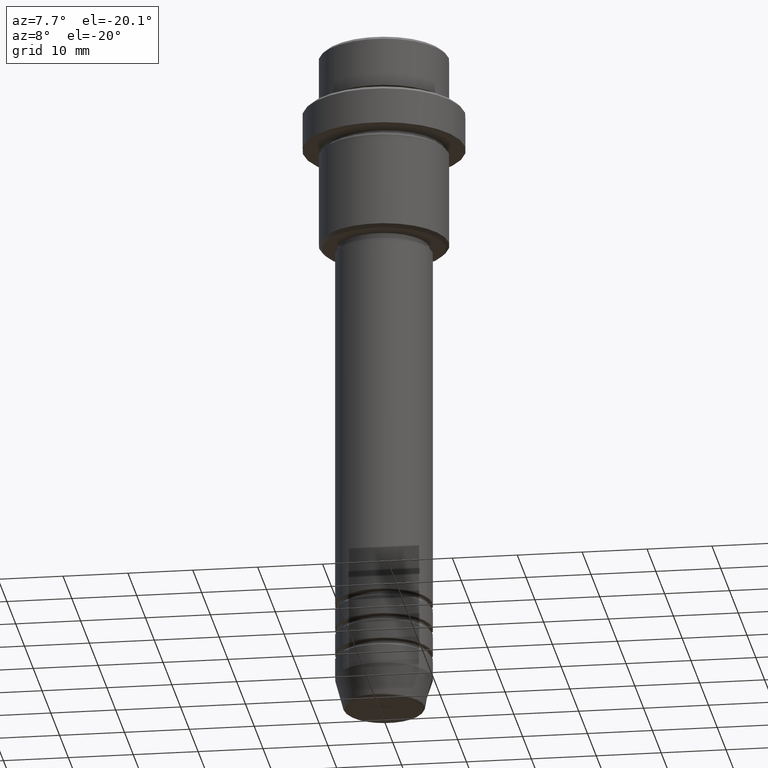
[diagram: clean part render]
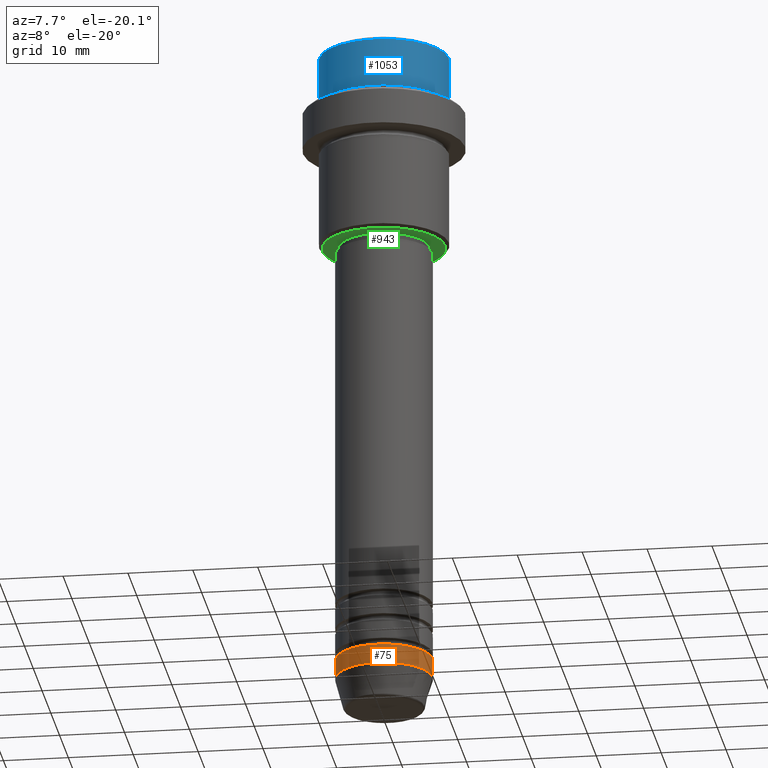
[diagram: same view with three faces highlighted in distinct colors, each labeled with its STEP entity id]
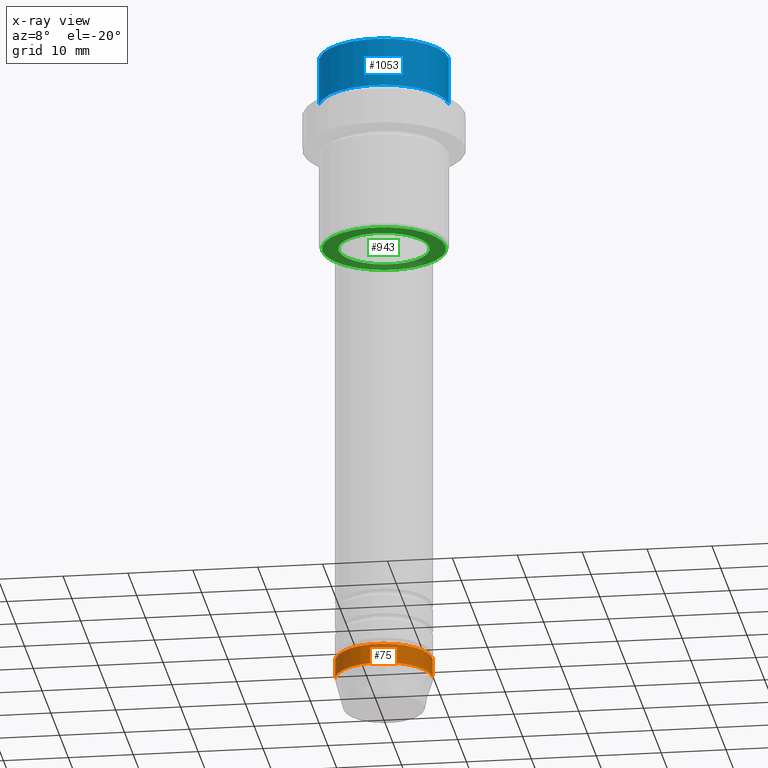
[diagram: x-ray of the same camera — body ghosted, the three highlighted faces saturated]
A machine part, auxiliary view with three faces highlighted in distinct colors.
The next image is the same camera in x-ray (body ghosted, the three faces saturated) — at least one of them is partly hidden behind the body in this view.
Their STEP definitions:

[orange] entity #75 — the highlighted cylindrical surface (partial cylindrical patch) has radius 7.5 mm, axis along (-0, -0, 1).
#30 = DIRECTION ( 'NONE',  ( -0.000000000000000000, -0.000000000000000000, 1.000000000000000000 ) ) ;
#75 = ADVANCED_FACE ( 'NONE', ( #702 ), #257, .T. ) ;
#110 = EDGE_CURVE ( 'NONE', #1167, #908, #695, .T. ) ;
#132 = CARTESIAN_POINT ( 'NONE',  ( 0.000000000000000000, 0.000000000000000000, -98.00000000000000000 ) ) ;
#204 = DIRECTION ( 'NONE',  ( -0.000000000000000000, -0.000000000000000000, 1.000000000000000000 ) ) ;
#225 = EDGE_CURVE ( 'NONE', #708, #908, #1089, .T. ) ;
#230 = DIRECTION ( 'NONE',  ( -0.000000000000000000, -0.000000000000000000, 1.000000000000000000 ) ) ;
#250 = CARTESIAN_POINT ( 'NONE',  ( 0.000000000000000000, 0.000000000000000000, 0.000000000000000000 ) ) ;
#257 = CYLINDRICAL_SURFACE ( 'NONE', #273, 7.500000000000000000 ) ;
#273 = AXIS2_PLACEMENT_3D ( 'NONE', #250, #1145, #1250 ) ;
#289 = ORIENTED_EDGE ( 'NONE', *, *, #472, .F. ) ;
#322 = VERTEX_POINT ( 'NONE', #648 ) ;
#330 = CIRCLE ( 'NONE', #500, 7.500000000000000000 ) ;
#399 = ORIENTED_EDGE ( 'NONE', *, *, #110, .T. ) ;
#428 = CARTESIAN_POINT ( 'NONE',  ( -7.500000000000000000, 9.184850993605147944E-16, 0.000000000000000000 ) ) ;
#472 = EDGE_CURVE ( 'NONE', #322, #708, #784, .T. ) ;
#500 = AXIS2_PLACEMENT_3D ( 'NONE', #1208, #230, #672 ) ;
#648 = CARTESIAN_POINT ( 'NONE',  ( -7.500000000000000000, 9.184850993605147944E-16, -101.0000000000000000 ) ) ;
#672 = DIRECTION ( 'NONE',  ( 1.000000000000000000, 0.000000000000000000, 0.000000000000000000 ) ) ;
#690 = VECTOR ( 'NONE', #947, 1000.000000000000000 ) ;
#695 = LINE ( 'NONE', #729, #690 ) ;
#702 = FACE_OUTER_BOUND ( 'NONE', #1214, .T. ) ;
#708 = VERTEX_POINT ( 'NONE', #1359 ) ;
#729 = CARTESIAN_POINT ( 'NONE',  ( 7.500000000000000000, 0.000000000000000000, 0.000000000000000000 ) ) ;
#784 = LINE ( 'NONE', #428, #951 ) ;
#908 = VERTEX_POINT ( 'NONE', #990 ) ;
#947 = DIRECTION ( 'NONE',  ( -0.000000000000000000, -0.000000000000000000, 1.000000000000000000 ) ) ;
#948 = ORIENTED_EDGE ( 'NONE', *, *, #1101, .T. ) ;
#951 = VECTOR ( 'NONE', #204, 1000.000000000000000 ) ;
#990 = CARTESIAN_POINT ( 'NONE',  ( 7.500000000000000000, 0.000000000000000000, -98.00000000000000000 ) ) ;
#1030 = CARTESIAN_POINT ( 'NONE',  ( 7.500000000000000000, 0.000000000000000000, -101.0000000000000000 ) ) ;
#1051 = ORIENTED_EDGE ( 'NONE', *, *, #225, .F. ) ;
#1089 = CIRCLE ( 'NONE', #1299, 7.500000000000000000 ) ;
#1101 = EDGE_CURVE ( 'NONE', #322, #1167, #330, .T. ) ;
#1145 = DIRECTION ( 'NONE',  ( -0.000000000000000000, -0.000000000000000000, 1.000000000000000000 ) ) ;
#1167 = VERTEX_POINT ( 'NONE', #1030 ) ;
#1208 = CARTESIAN_POINT ( 'NONE',  ( 0.000000000000000000, 0.000000000000000000, -101.0000000000000000 ) ) ;
#1214 = EDGE_LOOP ( 'NONE', ( #289, #948, #399, #1051 ) ) ;
#1250 = DIRECTION ( 'NONE',  ( 1.000000000000000000, 0.000000000000000000, 0.000000000000000000 ) ) ;
#1299 = AXIS2_PLACEMENT_3D ( 'NONE', #132, #30, #1333 ) ;
#1333 = DIRECTION ( 'NONE',  ( 1.000000000000000000, 0.000000000000000000, 0.000000000000000000 ) ) ;
#1359 = CARTESIAN_POINT ( 'NONE',  ( -7.500000000000000000, 9.184850993605147944E-16, -98.00000000000000000 ) ) ;

[blue] entity #1053 — the highlighted cylindrical surface (partial cylindrical patch) has radius 10 mm, axis along (-0, -0, 1).
#7 = CARTESIAN_POINT ( 'NONE',  ( -9.999999999999998224, 1.224646799147353059E-15, -7.999999999999998224 ) ) ;
#15 = ORIENTED_EDGE ( 'NONE', *, *, #829, .F. ) ;
#38 = DIRECTION ( 'NONE',  ( -0.000000000000000000, -0.000000000000000000, 1.000000000000000000 ) ) ;
#87 = DIRECTION ( 'NONE',  ( 1.000000000000000000, 0.000000000000000000, 0.000000000000000000 ) ) ;
#95 = DIRECTION ( 'NONE',  ( -0.000000000000000000, -0.000000000000000000, 1.000000000000000000 ) ) ;
#100 = DIRECTION ( 'NONE',  ( -0.000000000000000000, -0.000000000000000000, 1.000000000000000000 ) ) ;
#114 = CARTESIAN_POINT ( 'NONE',  ( 9.999999999999998224, 0.000000000000000000, 0.000000000000000000 ) ) ;
#116 = CARTESIAN_POINT ( 'NONE',  ( 0.000000000000000000, 0.000000000000000000, -0.5000000000000247580 ) ) ;
#134 = AXIS2_PLACEMENT_3D ( 'NONE', #116, #563, #1009 ) ;
#144 = EDGE_CURVE ( 'NONE', #1103, #1229, #1218, .T. ) ;
#223 = LINE ( 'NONE', #114, #741 ) ;
#332 = EDGE_LOOP ( 'NONE', ( #15, #1349, #1338, #508 ) ) ;
#366 = EDGE_CURVE ( 'NONE', #468, #510, #395, .T. ) ;
#395 = CIRCLE ( 'NONE', #134, 9.999999999999998224 ) ;
#461 = EDGE_CURVE ( 'NONE', #1229, #468, #223, .T. ) ;
#468 = VERTEX_POINT ( 'NONE', #1098 ) ;
#487 = CARTESIAN_POINT ( 'NONE',  ( -9.999999999999998224, 1.224646799147353059E-15, 0.000000000000000000 ) ) ;
#508 = ORIENTED_EDGE ( 'NONE', *, *, #366, .T. ) ;
#510 = VERTEX_POINT ( 'NONE', #1077 ) ;
#522 = AXIS2_PLACEMENT_3D ( 'NONE', #1070, #95, #87 ) ;
#554 = DIRECTION ( 'NONE',  ( -0.000000000000000000, -0.000000000000000000, 1.000000000000000000 ) ) ;
#563 = DIRECTION ( 'NONE',  ( 0.000000000000000000, 0.000000000000000000, -1.000000000000000000 ) ) ;
#712 = CARTESIAN_POINT ( 'NONE',  ( 9.999999999999998224, 0.000000000000000000, -7.999999999999998224 ) ) ;
#741 = VECTOR ( 'NONE', #554, 1000.000000000000000 ) ;
#829 = EDGE_CURVE ( 'NONE', #1103, #510, #1031, .T. ) ;
#928 = CYLINDRICAL_SURFACE ( 'NONE', #1021, 9.999999999999998224 ) ;
#1009 = DIRECTION ( 'NONE',  ( 1.000000000000000000, 0.000000000000000000, 0.000000000000000000 ) ) ;
#1021 = AXIS2_PLACEMENT_3D ( 'NONE', #1107, #100, #1314 ) ;
#1031 = LINE ( 'NONE', #487, #1037 ) ;
#1037 = VECTOR ( 'NONE', #38, 1000.000000000000000 ) ;
#1053 = ADVANCED_FACE ( 'NONE', ( #1203 ), #928, .T. ) ;
#1070 = CARTESIAN_POINT ( 'NONE',  ( 0.000000000000000000, 0.000000000000000000, -7.999999999999998224 ) ) ;
#1077 = CARTESIAN_POINT ( 'NONE',  ( -9.999999999999998224, 1.224646799147353059E-15, -0.5000000000000247580 ) ) ;
#1098 = CARTESIAN_POINT ( 'NONE',  ( 9.999999999999998224, 0.000000000000000000, -0.5000000000000247580 ) ) ;
#1103 = VERTEX_POINT ( 'NONE', #7 ) ;
#1107 = CARTESIAN_POINT ( 'NONE',  ( 0.000000000000000000, 0.000000000000000000, 0.000000000000000000 ) ) ;
#1203 = FACE_OUTER_BOUND ( 'NONE', #332, .T. ) ;
#1218 = CIRCLE ( 'NONE', #522, 9.999999999999998224 ) ;
#1229 = VERTEX_POINT ( 'NONE', #712 ) ;
#1314 = DIRECTION ( 'NONE',  ( 1.000000000000000000, 0.000000000000000000, 0.000000000000000000 ) ) ;
#1338 = ORIENTED_EDGE ( 'NONE', *, *, #461, .T. ) ;
#1349 = ORIENTED_EDGE ( 'NONE', *, *, #144, .T. ) ;

[green] entity #943 — the highlighted planar face has unit normal (0, 0, -1).
#76 = CARTESIAN_POINT ( 'NONE',  ( 0.000000000000000000, 0.000000000000000000, -30.99999999999999645 ) ) ;
#77 = DIRECTION ( 'NONE',  ( 1.000000000000000000, 0.000000000000000000, 0.000000000000000000 ) ) ;
#78 = VERTEX_POINT ( 'NONE', #716 ) ;
#133 = AXIS2_PLACEMENT_3D ( 'NONE', #76, #420, #657 ) ;
#173 = ORIENTED_EDGE ( 'NONE', *, *, #1385, .T. ) ;
#214 = DIRECTION ( 'NONE',  ( -1.000000000000000000, 0.000000000000000000, -0.000000000000000000 ) ) ;
#274 = AXIS2_PLACEMENT_3D ( 'NONE', #310, #770, #1191 ) ;
#275 = CIRCLE ( 'NONE', #459, 9.500000000000008882 ) ;
#310 = CARTESIAN_POINT ( 'NONE',  ( 0.000000000000000000, 0.000000000000000000, -30.99999999999999289 ) ) ;
#336 = DIRECTION ( 'NONE',  ( 0.000000000000000000, 0.000000000000000000, -1.000000000000000000 ) ) ;
#338 = EDGE_LOOP ( 'NONE', ( #173, #1217 ) ) ;
#339 = EDGE_CURVE ( 'NONE', #78, #485, #275, .T. ) ;
#420 = DIRECTION ( 'NONE',  ( 0.000000000000000000, 0.000000000000000000, -1.000000000000000000 ) ) ;
#424 = DIRECTION ( 'NONE',  ( 0.000000000000000000, 0.000000000000000000, -1.000000000000000000 ) ) ;
#429 = DIRECTION ( 'NONE',  ( -0.000000000000000000, -0.000000000000000000, 1.000000000000000000 ) ) ;
#459 = AXIS2_PLACEMENT_3D ( 'NONE', #988, #424, #766 ) ;
#485 = VERTEX_POINT ( 'NONE', #573 ) ;
#538 = ORIENTED_EDGE ( 'NONE', *, *, #1303, .T. ) ;
#573 = CARTESIAN_POINT ( 'NONE',  ( 9.500000000000008882, 0.000000000000000000, -30.99999999999999645 ) ) ;
#619 = CIRCLE ( 'NONE', #274, 6.999999999999993783 ) ;
#657 = DIRECTION ( 'NONE',  ( -1.000000000000000000, 0.000000000000000000, 0.000000000000000000 ) ) ;
#716 = CARTESIAN_POINT ( 'NONE',  ( -9.500000000000008882, 1.194030629168669864E-15, -30.99999999999999645 ) ) ;
#766 = DIRECTION ( 'NONE',  ( -1.000000000000000000, 0.000000000000000000, 0.000000000000000000 ) ) ;
#768 = CIRCLE ( 'NONE', #133, 9.500000000000008882 ) ;
#770 = DIRECTION ( 'NONE',  ( -0.000000000000000000, -0.000000000000000000, 1.000000000000000000 ) ) ;
#852 = ORIENTED_EDGE ( 'NONE', *, *, #920, .T. ) ;
#859 = CARTESIAN_POINT ( 'NONE',  ( 0.000000000000000000, 0.000000000000000000, -30.99999999999999289 ) ) ;
#866 = VERTEX_POINT ( 'NONE', #1407 ) ;
#920 = EDGE_CURVE ( 'NONE', #866, #1220, #1237, .T. ) ;
#943 = ADVANCED_FACE ( 'NONE', ( #1302, #1395 ), #1283, .T. ) ;
#958 = EDGE_LOOP ( 'NONE', ( #538, #852 ) ) ;
#988 = CARTESIAN_POINT ( 'NONE',  ( 0.000000000000000000, 0.000000000000000000, -30.99999999999999645 ) ) ;
#1059 = AXIS2_PLACEMENT_3D ( 'NONE', #859, #429, #77 ) ;
#1191 = DIRECTION ( 'NONE',  ( 1.000000000000000000, 0.000000000000000000, 0.000000000000000000 ) ) ;
#1217 = ORIENTED_EDGE ( 'NONE', *, *, #339, .T. ) ;
#1220 = VERTEX_POINT ( 'NONE', #1368 ) ;
#1237 = CIRCLE ( 'NONE', #1059, 6.999999999999993783 ) ;
#1275 = AXIS2_PLACEMENT_3D ( 'NONE', #1276, #336, #214 ) ;
#1276 = CARTESIAN_POINT ( 'NONE',  ( 0.000000000000000000, 10.00000000000000000, -30.99999999999999645 ) ) ;
#1283 = PLANE ( 'NONE',  #1275 ) ;
#1302 = FACE_OUTER_BOUND ( 'NONE', #338, .T. ) ;
#1303 = EDGE_CURVE ( 'NONE', #1220, #866, #619, .T. ) ;
#1368 = CARTESIAN_POINT ( 'NONE',  ( 6.999999999999993783, 0.000000000000000000, -30.99999999999999289 ) ) ;
#1385 = EDGE_CURVE ( 'NONE', #485, #78, #768, .T. ) ;
#1395 = FACE_BOUND ( 'NONE', #958, .T. ) ;
#1407 = CARTESIAN_POINT ( 'NONE',  ( -6.999999999999993783, 8.572527594031465301E-16, -30.99999999999999289 ) ) ;